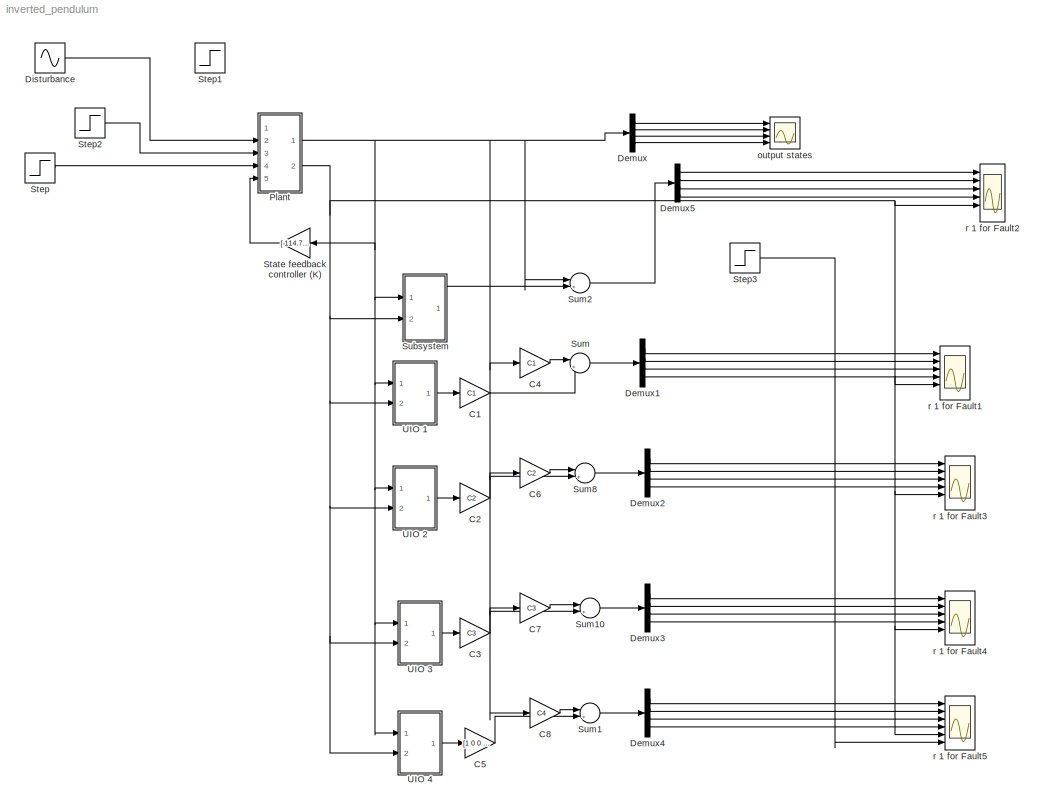
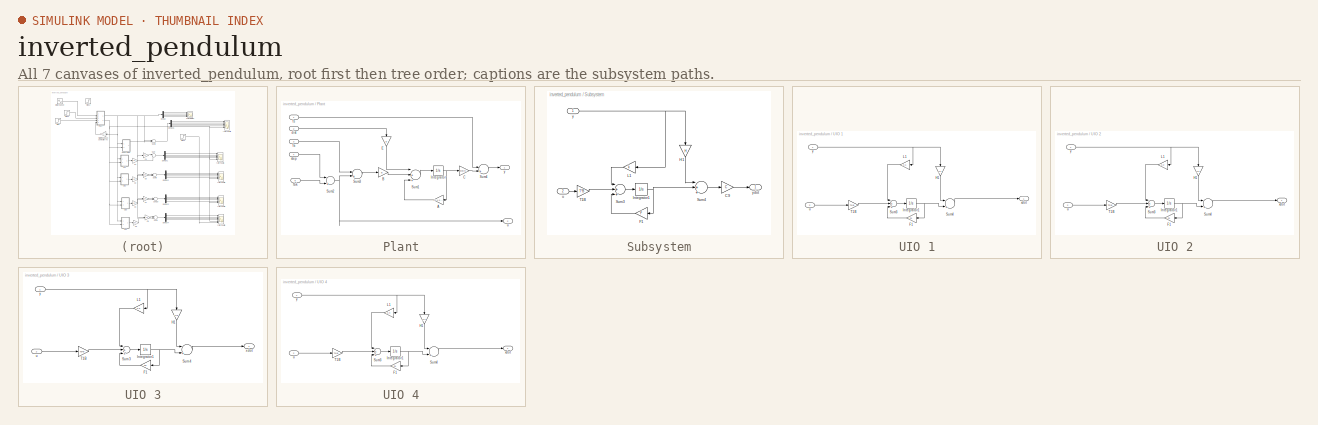
[diagram: thumbnail index - all 7 canvases of the model, root first then tree order]
MODEL inverted_pendulum
KIND model
BLOCK [Gain] C1
  Gain = C1
  Multiplication = Matrix(K*u)
  OutDataTypeMode = Inherit via internal rule
  ParameterDataTypeMode = Inherit via internal rule
  SaturateOnIntegerOverflow = off
BLOCK [Gain] C2
  Gain = C2
  Multiplication = Matrix(K*u)
  OutDataTypeMode = Inherit via internal rule
  ParameterDataTypeMode = Inherit via internal rule
  SaturateOnIntegerOverflow = off
BLOCK [Gain] C3
  Gain = C3
  Multiplication = Matrix(K*u)
  OutDataTypeMode = Inherit via internal rule
  ParameterDataTypeMode = Inherit via internal rule
  SaturateOnIntegerOverflow = off
BLOCK [Gain] C4
  Gain = C1
  Multiplication = Matrix(K*u)
  OutDataTypeMode = Inherit via internal rule
  ParameterDataTypeMode = Inherit via internal rule
  SaturateOnIntegerOverflow = off
BLOCK [Gain] C5
  Gain = [1 0 0 0; 0 1 0 0; 0 0 1 0;0 0 0 0]
  Multiplication = Matrix(K*u)
  OutDataTypeMode = Inherit via internal rule
  ParameterDataTypeMode = Inherit via internal rule
  SaturateOnIntegerOverflow = off
BLOCK [Gain] C6
  Gain = C2
  Multiplication = Matrix(K*u)
  OutDataTypeMode = Inherit via internal rule
  ParameterDataTypeMode = Inherit via internal rule
  SaturateOnIntegerOverflow = off
BLOCK [Gain] C7
  Gain = C3
  Multiplication = Matrix(K*u)
  OutDataTypeMode = Inherit via internal rule
  ParameterDataTypeMode = Inherit via internal rule
  SaturateOnIntegerOverflow = off
BLOCK [Gain] C8
  Gain = C4
  Multiplication = Matrix(K*u)
  OutDataTypeMode = Inherit via internal rule
  ParameterDataTypeMode = Inherit via internal rule
  SaturateOnIntegerOverflow = off
BLOCK [Demux] Demux
  DisplayOption = bar
  Ports = [1, 4]
BLOCK [Demux] Demux1
  DisplayOption = bar
  Ports = [1, 4]
BLOCK [Demux] Demux2
  DisplayOption = bar
  Ports = [1, 4]
BLOCK [Demux] Demux3
  DisplayOption = bar
  Ports = [1, 4]
BLOCK [Demux] Demux4
  DisplayOption = bar
  Ports = [1, 4]
BLOCK [Demux] Demux5
  DisplayOption = bar
  Ports = [1, 4]
BLOCK [Sin] Disturbance
  Amplitude = 0.1
  Frequency = 50
  Ports = [0, 1]
  SampleTime = 0
  SineType = Time based
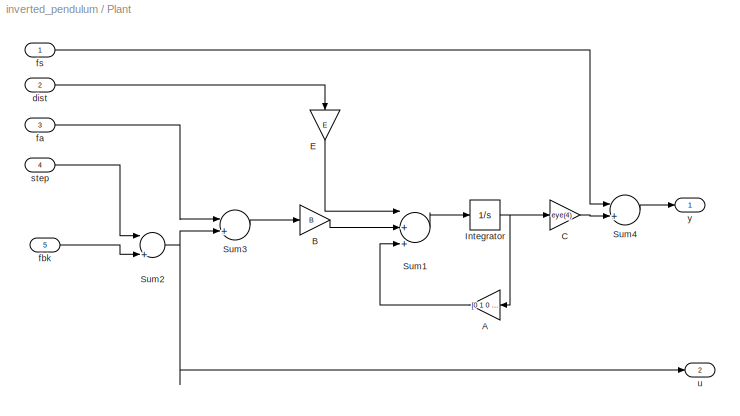
BLOCK [SubSystem] Plant
  MinAlgLoopOccurrences = off
  Ports = [5, 2]
  RTWSystemCode = Auto
  TreatAsAtomicUnit = off
BLOCK [Gain] Plant/A
  Gain = [0 1 0 0 ; 19.6 0 0 0 ; 0 0 0 1; -9.8 0 0 0]
  Multiplication = Matrix(K*u)
  OutDataTypeMode = Inherit via internal rule
  ParameterDataTypeMode = Inherit via internal rule
  SaturateOnIntegerOverflow = off
BLOCK [Gain] Plant/B
  Gain = B
  Multiplication = Matrix(K*u)
  OutDataTypeMode = Inherit via internal rule
  ParameterDataTypeMode = Inherit via internal rule
  SaturateOnIntegerOverflow = off
BLOCK [Gain] Plant/C
  Gain = eye(4)
  Multiplication = Matrix(K*u)
  OutDataTypeMode = Inherit via internal rule
  ParameterDataTypeMode = Inherit via internal rule
  SaturateOnIntegerOverflow = off
BLOCK [Gain] Plant/E
  Gain = E
  Multiplication = Matrix(K*u)
  OutDataTypeMode = Inherit via internal rule
  ParameterDataTypeMode = Inherit via internal rule
  SaturateOnIntegerOverflow = off
BLOCK [Integrator] Plant/Integrator
  Ports = [1, 1]
BLOCK [Sum] Plant/Sum1
  InputSameDT = off
  Inputs = |+++
  OutDataTypeMode = Inherit via internal rule
  Ports = [3, 1]
  SaturateOnIntegerOverflow = off
BLOCK [Sum] Plant/Sum2
  InputSameDT = off
  Inputs = |+-
  OutDataTypeMode = Inherit via internal rule
  Ports = [2, 1]
  SaturateOnIntegerOverflow = off
BLOCK [Sum] Plant/Sum3
  InputSameDT = off
  Inputs = |++
  OutDataTypeMode = Inherit via internal rule
  Ports = [2, 1]
  SaturateOnIntegerOverflow = off
BLOCK [Sum] Plant/Sum4
  InputSameDT = off
  Inputs = |++
  OutDataTypeMode = Inherit via internal rule
  Ports = [2, 1]
  SaturateOnIntegerOverflow = off
BLOCK [Inport] Plant/dist
  IconDisplay = Port number
  LatchInput = off
  Port = 2
BLOCK [Inport] Plant/fa
  IconDisplay = Port number
  LatchInput = off
  Port = 3
BLOCK [Inport] Plant/fbk
  IconDisplay = Port number
  LatchInput = off
  Port = 5
BLOCK [Inport] Plant/fs
  IconDisplay = Port number
  LatchInput = off
  Port = 1
BLOCK [Inport] Plant/step
  IconDisplay = Port number
  LatchInput = off
  Port = 4
BLOCK [Outport] Plant/u
  BusOutputAsStruct = off
  IconDisplay = Port number
  Port = 2
BLOCK [Outport] Plant/y
  BusOutputAsStruct = off
  IconDisplay = Port number
BLOCK [Gain] State feedback controller (K)
  Gain = [-114.7633  -28.1633  -33.1633  -18.1633]
  Multiplication = Matrix(K*u)
  OutDataTypeMode = Inherit via internal rule
  ParameterDataTypeMode = Inherit via internal rule
  SaturateOnIntegerOverflow = off
BLOCK [Step] Step
  SampleTime = 0
  Time = 0
BLOCK [Step] Step1
  SampleTime = 0
  Time = 7
BLOCK [Step] Step2
  SampleTime = 0
  Time = 7
BLOCK [Step] Step3
  SampleTime = 0
  Time = 7
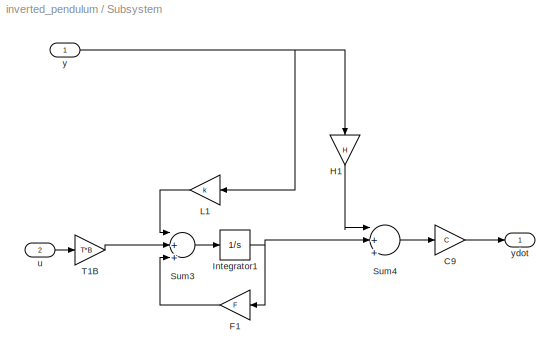
BLOCK [SubSystem] Subsystem
  MinAlgLoopOccurrences = off
  Ports = [2, 1]
  RTWSystemCode = Auto
  TreatAsAtomicUnit = off
BLOCK [Gain] Subsystem/C9
  Gain = C
  Multiplication = Matrix(K*u)
  OutDataTypeMode = Inherit via internal rule
  ParameterDataTypeMode = Inherit via internal rule
  SaturateOnIntegerOverflow = off
BLOCK [Gain] Subsystem/F1
  Gain = F
  Multiplication = Matrix(K*u)
  OutDataTypeMode = Inherit via internal rule
  ParameterDataTypeMode = Inherit via internal rule
  SaturateOnIntegerOverflow = off
BLOCK [Gain] Subsystem/H1
  Gain = H
  Multiplication = Matrix(K*u)
  OutDataTypeMode = Inherit via internal rule
  ParameterDataTypeMode = Inherit via internal rule
  SaturateOnIntegerOverflow = off
BLOCK [Integrator] Subsystem/Integrator1
  Ports = [1, 1]
BLOCK [Gain] Subsystem/L1
  Gain = k
  Multiplication = Matrix(K*u)
  OutDataTypeMode = Inherit via internal rule
  ParameterDataTypeMode = Inherit via internal rule
  SaturateOnIntegerOverflow = off
BLOCK [Sum] Subsystem/Sum3
  InputSameDT = off
  Inputs = |+++
  OutDataTypeMode = Inherit via internal rule
  Ports = [3, 1]
  SaturateOnIntegerOverflow = off
BLOCK [Sum] Subsystem/Sum4
  InputSameDT = off
  Inputs = |+++
  OutDataTypeMode = Inherit via internal rule
  Ports = [3, 1]
  SaturateOnIntegerOverflow = off
BLOCK [Gain] Subsystem/T1B
  Gain = T*B
  Multiplication = Matrix(K*u)
  OutDataTypeMode = Inherit via internal rule
  ParameterDataTypeMode = Inherit via internal rule
  SaturateOnIntegerOverflow = off
BLOCK [Inport] Subsystem/u
  IconDisplay = Port number
  LatchInput = off
  Port = 2
BLOCK [Inport] Subsystem/y
  IconDisplay = Port number
  LatchInput = off
  Port = 1
BLOCK [Outport] Subsystem/ydot
  BusOutputAsStruct = off
  IconDisplay = Port number
BLOCK [Sum] Sum
  IconShape = round
  InputSameDT = off
  Inputs = |+-
  OutDataTypeMode = Inherit via internal rule
  Ports = [2, 1]
  SaturateOnIntegerOverflow = off
BLOCK [Sum] Sum1
  IconShape = round
  InputSameDT = off
  Inputs = |+-
  OutDataTypeMode = Inherit via internal rule
  Ports = [2, 1]
  SaturateOnIntegerOverflow = off
BLOCK [Sum] Sum10
  IconShape = round
  InputSameDT = off
  Inputs = |+-
  OutDataTypeMode = Inherit via internal rule
  Ports = [2, 1]
  SaturateOnIntegerOverflow = off
BLOCK [Sum] Sum2
  IconShape = round
  InputSameDT = off
  Inputs = |+-
  OutDataTypeMode = Inherit via internal rule
  Ports = [2, 1]
  SaturateOnIntegerOverflow = off
BLOCK [Sum] Sum8
  IconShape = round
  InputSameDT = off
  Inputs = |+-
  OutDataTypeMode = Inherit via internal rule
  Ports = [2, 1]
  SaturateOnIntegerOverflow = off
BLOCK [SubSystem] UIO 1
  MinAlgLoopOccurrences = off
  Ports = [2, 1]
  RTWSystemCode = Auto
  TreatAsAtomicUnit = off
BLOCK [Gain] UIO 1/F1
  Gain = F1
  Multiplication = Matrix(K*u)
  OutDataTypeMode = Inherit via internal rule
  ParameterDataTypeMode = Inherit via internal rule
  SaturateOnIntegerOverflow = off
BLOCK [Gain] UIO 1/H1
  Gain = H1
  Multiplication = Matrix(K*u)
  OutDataTypeMode = Inherit via internal rule
  ParameterDataTypeMode = Inherit via internal rule
  SaturateOnIntegerOverflow = off
BLOCK [Integrator] UIO 1/Integrator1
  Ports = [1, 1]
BLOCK [Gain] UIO 1/L1
  Gain = K1
  Multiplication = Matrix(K*u)
  OutDataTypeMode = Inherit via internal rule
  ParameterDataTypeMode = Inherit via internal rule
  SaturateOnIntegerOverflow = off
BLOCK [Sum] UIO 1/Sum3
  InputSameDT = off
  Inputs = |+++
  OutDataTypeMode = Inherit via internal rule
  Ports = [3, 1]
  SaturateOnIntegerOverflow = off
BLOCK [Sum] UIO 1/Sum4
  InputSameDT = off
  Inputs = |++
  OutDataTypeMode = Inherit via internal rule
  Ports = [2, 1]
  SaturateOnIntegerOverflow = off
BLOCK [Gain] UIO 1/T1B
  Gain = T1*B
  Multiplication = Matrix(K*u)
  OutDataTypeMode = Inherit via internal rule
  ParameterDataTypeMode = Inherit via internal rule
  SaturateOnIntegerOverflow = off
BLOCK [Inport] UIO 1/u
  IconDisplay = Port number
  LatchInput = off
  Port = 2
BLOCK [Outport] UIO 1/xdot
  BusOutputAsStruct = off
  IconDisplay = Port number
BLOCK [Inport] UIO 1/y
  IconDisplay = Port number
  LatchInput = off
  Port = 1
BLOCK [SubSystem] UIO 2
  MinAlgLoopOccurrences = off
  Ports = [2, 1]
  RTWSystemCode = Auto
  TreatAsAtomicUnit = off
BLOCK [Gain] UIO 2/F1
  Gain = F1
  Multiplication = Matrix(K*u)
  OutDataTypeMode = Inherit via internal rule
  ParameterDataTypeMode = Inherit via internal rule
  SaturateOnIntegerOverflow = off
BLOCK [Gain] UIO 2/H1
  Gain = H2
  Multiplication = Matrix(K*u)
  OutDataTypeMode = Inherit via internal rule
  ParameterDataTypeMode = Inherit via internal rule
  SaturateOnIntegerOverflow = off
BLOCK [Integrator] UIO 2/Integrator1
  Ports = [1, 1]
BLOCK [Gain] UIO 2/L1
  Gain = K2
  Multiplication = Matrix(K*u)
  OutDataTypeMode = Inherit via internal rule
  ParameterDataTypeMode = Inherit via internal rule
  SaturateOnIntegerOverflow = off
BLOCK [Sum] UIO 2/Sum3
  InputSameDT = off
  Inputs = |+++
  OutDataTypeMode = Inherit via internal rule
  Ports = [3, 1]
  SaturateOnIntegerOverflow = off
BLOCK [Sum] UIO 2/Sum4
  InputSameDT = off
  Inputs = |++
  OutDataTypeMode = Inherit via internal rule
  Ports = [2, 1]
  SaturateOnIntegerOverflow = off
BLOCK [Gain] UIO 2/T1B
  Gain = T2*B
  Multiplication = Matrix(K*u)
  OutDataTypeMode = Inherit via internal rule
  ParameterDataTypeMode = Inherit via internal rule
  SaturateOnIntegerOverflow = off
BLOCK [Inport] UIO 2/u
  IconDisplay = Port number
  LatchInput = off
  Port = 2
BLOCK [Outport] UIO 2/xdot
  BusOutputAsStruct = off
  IconDisplay = Port number
BLOCK [Inport] UIO 2/y
  IconDisplay = Port number
  LatchInput = off
  Port = 1
BLOCK [SubSystem] UIO 3
  MinAlgLoopOccurrences = off
  Ports = [2, 1]
  RTWSystemCode = Auto
  TreatAsAtomicUnit = off
BLOCK [Gain] UIO 3/F1
  Gain = F3
  Multiplication = Matrix(K*u)
  OutDataTypeMode = Inherit via internal rule
  ParameterDataTypeMode = Inherit via internal rule
  SaturateOnIntegerOverflow = off
BLOCK [Gain] UIO 3/H1
  Gain = H3
  Multiplication = Matrix(K*u)
  OutDataTypeMode = Inherit via internal rule
  ParameterDataTypeMode = Inherit via internal rule
  SaturateOnIntegerOverflow = off
BLOCK [Integrator] UIO 3/Integrator1
  Ports = [1, 1]
BLOCK [Gain] UIO 3/L1
  Gain = K3
  Multiplication = Matrix(K*u)
  OutDataTypeMode = Inherit via internal rule
  ParameterDataTypeMode = Inherit via internal rule
  SaturateOnIntegerOverflow = off
BLOCK [Sum] UIO 3/Sum3
  InputSameDT = off
  Inputs = |+++
  OutDataTypeMode = Inherit via internal rule
  Ports = [3, 1]
  SaturateOnIntegerOverflow = off
BLOCK [Sum] UIO 3/Sum4
  InputSameDT = off
  Inputs = |++
  OutDataTypeMode = Inherit via internal rule
  Ports = [2, 1]
  SaturateOnIntegerOverflow = off
BLOCK [Gain] UIO 3/T1B
  Gain = T3*B
  Multiplication = Matrix(K*u)
  OutDataTypeMode = Inherit via internal rule
  ParameterDataTypeMode = Inherit via internal rule
  SaturateOnIntegerOverflow = off
BLOCK [Inport] UIO 3/u
  IconDisplay = Port number
  LatchInput = off
  Port = 2
BLOCK [Outport] UIO 3/xdot
  BusOutputAsStruct = off
  IconDisplay = Port number
BLOCK [Inport] UIO 3/y
  IconDisplay = Port number
  LatchInput = off
  Port = 1
BLOCK [SubSystem] UIO 4
  MinAlgLoopOccurrences = off
  Ports = [2, 1]
  RTWSystemCode = Auto
  TreatAsAtomicUnit = off
BLOCK [Gain] UIO 4/F1
  Gain = F4
  Multiplication = Matrix(K*u)
  OutDataTypeMode = Inherit via internal rule
  ParameterDataTypeMode = Inherit via internal rule
  SaturateOnIntegerOverflow = off
BLOCK [Gain] UIO 4/H1
  Gain = H4
  Multiplication = Matrix(K*u)
  OutDataTypeMode = Inherit via internal rule
  ParameterDataTypeMode = Inherit via internal rule
  SaturateOnIntegerOverflow = off
BLOCK [Integrator] UIO 4/Integrator1
  Ports = [1, 1]
BLOCK [Gain] UIO 4/L1
  Gain = K4
  Multiplication = Matrix(K*u)
  OutDataTypeMode = Inherit via internal rule
  ParameterDataTypeMode = Inherit via internal rule
  SaturateOnIntegerOverflow = off
BLOCK [Sum] UIO 4/Sum3
  InputSameDT = off
  Inputs = |+++
  OutDataTypeMode = Inherit via internal rule
  Ports = [3, 1]
  SaturateOnIntegerOverflow = off
BLOCK [Sum] UIO 4/Sum4
  InputSameDT = off
  Inputs = |++
  OutDataTypeMode = Inherit via internal rule
  Ports = [2, 1]
  SaturateOnIntegerOverflow = off
BLOCK [Gain] UIO 4/T1B
  Gain = T4*B
  Multiplication = Matrix(K*u)
  OutDataTypeMode = Inherit via internal rule
  ParameterDataTypeMode = Inherit via internal rule
  SaturateOnIntegerOverflow = off
BLOCK [Inport] UIO 4/u
  IconDisplay = Port number
  LatchInput = off
  Port = 2
BLOCK [Outport] UIO 4/xdot
  BusOutputAsStruct = off
  IconDisplay = Port number
BLOCK [Inport] UIO 4/y
  IconDisplay = Port number
  LatchInput = off
  Port = 1
BLOCK [Scope] output states
  DataFormat = StructureWithTime
  NumInputPorts = 4
  Ports = [4]
  TimeRange = 10
  YMax = 5~5~5~5
  YMin = -5~-5~-5~-5
BLOCK [Scope] r 1 for Fault1
  DataFormat = StructureWithTime
  NumInputPorts = 6
  Ports = [6]
  SaveName = ScopeData1
  YMax = 5~5~5~5~5~5
  YMin = -5~-5~-5~-5~-5~-5
BLOCK [Scope] r 1 for Fault2
  DataFormat = StructureWithTime
  NumInputPorts = 6
  Ports = [6]
  SaveName = ScopeData5
  YMax = 5~5~5~5~5~5
  YMin = -5~-5~-5~-5~-5~-5
BLOCK [Scope] r 1 for Fault3
  DataFormat = StructureWithTime
  NumInputPorts = 6
  Ports = [6]
  SaveName = ScopeData3
  YMax = 5~5~5~5~5~5
  YMin = -5~-5~-5~-5~-5~-5
BLOCK [Scope] r 1 for Fault4
  DataFormat = StructureWithTime
  NumInputPorts = 6
  Ports = [6]
  SaveName = ScopeData2
  YMax = 5~5~5~5~5~5
  YMin = -5~-5~-5~-5~-5~-5
BLOCK [Scope] r 1 for Fault5
  DataFormat = StructureWithTime
  NumInputPorts = 6
  Ports = [6]
  SaveName = ScopeData4
  YMax = 5~5~5~5~5~5
  YMin = -5~-5~-5~-5~-5~-5
LINE C1:1 -> Sum:2
LINE C2:1 -> Sum8:2
LINE C3:1 -> Sum10:2
LINE C4:1 -> Sum:1
LINE C5:1 -> Sum1:2
LINE C6:1 -> Sum8:1
LINE C7:1 -> Sum10:1
LINE C8:1 -> Sum1:1
LINE Demux1:1 -> r 1 for Fault1:1
LINE Demux1:2 -> r 1 for Fault1:2
LINE Demux1:3 -> r 1 for Fault1:3
LINE Demux1:4 -> r 1 for Fault1:4
LINE Demux2:1 -> r 1 for Fault3:1
LINE Demux2:2 -> r 1 for Fault3:2
LINE Demux2:3 -> r 1 for Fault3:3
LINE Demux2:4 -> r 1 for Fault3:4
LINE Demux3:1 -> r 1 for Fault4:1
LINE Demux3:2 -> r 1 for Fault4:2
LINE Demux3:3 -> r 1 for Fault4:3
LINE Demux3:4 -> r 1 for Fault4:4
LINE Demux4:1 -> r 1 for Fault5:1
LINE Demux4:2 -> r 1 for Fault5:2
LINE Demux4:3 -> r 1 for Fault5:3
LINE Demux4:4 -> r 1 for Fault5:4
LINE Demux5:1 -> r 1 for Fault2:1
LINE Demux5:2 -> r 1 for Fault2:2
LINE Demux5:3 -> r 1 for Fault2:3
LINE Demux5:4 -> r 1 for Fault2:4
LINE Demux:1 -> output states:1
LINE Demux:2 -> output states:2
LINE Demux:3 -> output states:3
LINE Demux:4 -> output states:4
LINE Disturbance:1 -> Plant:2
LINE Plant/A:1 -> Plant/Sum1:3
LINE Plant/B:1 -> Plant/Sum1:2
LINE Plant/C:1 -> Plant/Sum4:2
LINE Plant/E:1 -> Plant/Sum1:1
NET Plant/Integrator:1 -> Plant/A:1, Plant/C:1
LINE Plant/Sum1:1 -> Plant/Integrator:1
NET Plant/Sum2:1 -> Plant/Sum3:2, Plant/u:1
LINE Plant/Sum3:1 -> Plant/B:1
LINE Plant/Sum4:1 -> Plant/y:1
LINE Plant/dist:1 -> Plant/E:1
LINE Plant/fa:1 -> Plant/Sum3:1
LINE Plant/fbk:1 -> Plant/Sum2:2
LINE Plant/fs:1 -> Plant/Sum4:1
LINE Plant/step:1 -> Plant/Sum2:1
NET Plant:1 -> C4:1, C6:1, C7:1, C8:1, Demux:1, State feedback controller (K):1, Subsystem:1, Sum2:1, UIO 1:1, UIO 2:1, UIO 3:1, UIO 4:1
NET Plant:2 -> Subsystem:2, UIO 1:2, UIO 2:2, UIO 3:2, UIO 4:2, r 1 for Fault1:5, r 1 for Fault2:5, r 1 for Fault3:5, r 1 for Fault4:5, r 1 for Fault5:5
LINE State feedback controller (K):1 -> Plant:5
LINE Step2:1 -> Plant:3
LINE Step3:1 -> r 1 for Fault5:6
LINE Step:1 -> Plant:4
LINE Subsystem/C9:1 -> Subsystem/ydot:1
LINE Subsystem/F1:1 -> Subsystem/Sum3:3
LINE Subsystem/H1:1 -> Subsystem/Sum4:1
NET Subsystem/Integrator1:1 -> Subsystem/F1:1, Subsystem/Sum4:2
LINE Subsystem/L1:1 -> Subsystem/Sum3:1
LINE Subsystem/Sum3:1 -> Subsystem/Integrator1:1
LINE Subsystem/Sum4:1 -> Subsystem/C9:1
LINE Subsystem/T1B:1 -> Subsystem/Sum3:2
LINE Subsystem/u:1 -> Subsystem/T1B:1
NET Subsystem/y:1 -> Subsystem/H1:1, Subsystem/L1:1
LINE Subsystem:1 -> Sum2:2
LINE Sum10:1 -> Demux3:1
LINE Sum1:1 -> Demux4:1
LINE Sum2:1 -> Demux5:1
LINE Sum8:1 -> Demux2:1
LINE Sum:1 -> Demux1:1
LINE UIO 1/F1:1 -> UIO 1/Sum3:3
LINE UIO 1/H1:1 -> UIO 1/Sum4:1
NET UIO 1/Integrator1:1 -> UIO 1/F1:1, UIO 1/Sum4:2
LINE UIO 1/L1:1 -> UIO 1/Sum3:1
LINE UIO 1/Sum3:1 -> UIO 1/Integrator1:1
LINE UIO 1/Sum4:1 -> UIO 1/xdot:1
LINE UIO 1/T1B:1 -> UIO 1/Sum3:2
LINE UIO 1/u:1 -> UIO 1/T1B:1
NET UIO 1/y:1 -> UIO 1/H1:1, UIO 1/L1:1
LINE UIO 1:1 -> C1:1
LINE UIO 2/F1:1 -> UIO 2/Sum3:3
LINE UIO 2/H1:1 -> UIO 2/Sum4:1
NET UIO 2/Integrator1:1 -> UIO 2/F1:1, UIO 2/Sum4:2
LINE UIO 2/L1:1 -> UIO 2/Sum3:1
LINE UIO 2/Sum3:1 -> UIO 2/Integrator1:1
LINE UIO 2/Sum4:1 -> UIO 2/xdot:1
LINE UIO 2/T1B:1 -> UIO 2/Sum3:2
LINE UIO 2/u:1 -> UIO 2/T1B:1
NET UIO 2/y:1 -> UIO 2/H1:1, UIO 2/L1:1
LINE UIO 2:1 -> C2:1
LINE UIO 3/F1:1 -> UIO 3/Sum3:3
LINE UIO 3/H1:1 -> UIO 3/Sum4:1
NET UIO 3/Integrator1:1 -> UIO 3/F1:1, UIO 3/Sum4:2
LINE UIO 3/L1:1 -> UIO 3/Sum3:1
LINE UIO 3/Sum3:1 -> UIO 3/Integrator1:1
LINE UIO 3/Sum4:1 -> UIO 3/xdot:1
LINE UIO 3/T1B:1 -> UIO 3/Sum3:2
LINE UIO 3/u:1 -> UIO 3/T1B:1
NET UIO 3/y:1 -> UIO 3/H1:1, UIO 3/L1:1
LINE UIO 3:1 -> C3:1
LINE UIO 4/F1:1 -> UIO 4/Sum3:3
LINE UIO 4/H1:1 -> UIO 4/Sum4:1
NET UIO 4/Integrator1:1 -> UIO 4/F1:1, UIO 4/Sum4:2
LINE UIO 4/L1:1 -> UIO 4/Sum3:1
LINE UIO 4/Sum3:1 -> UIO 4/Integrator1:1
LINE UIO 4/Sum4:1 -> UIO 4/xdot:1
LINE UIO 4/T1B:1 -> UIO 4/Sum3:2
LINE UIO 4/u:1 -> UIO 4/T1B:1
NET UIO 4/y:1 -> UIO 4/H1:1, UIO 4/L1:1
LINE UIO 4:1 -> C5:1
note: NET lines group one-source signal fan-out (src -> all destinations, sorted); 1:1 wires keep LINE
